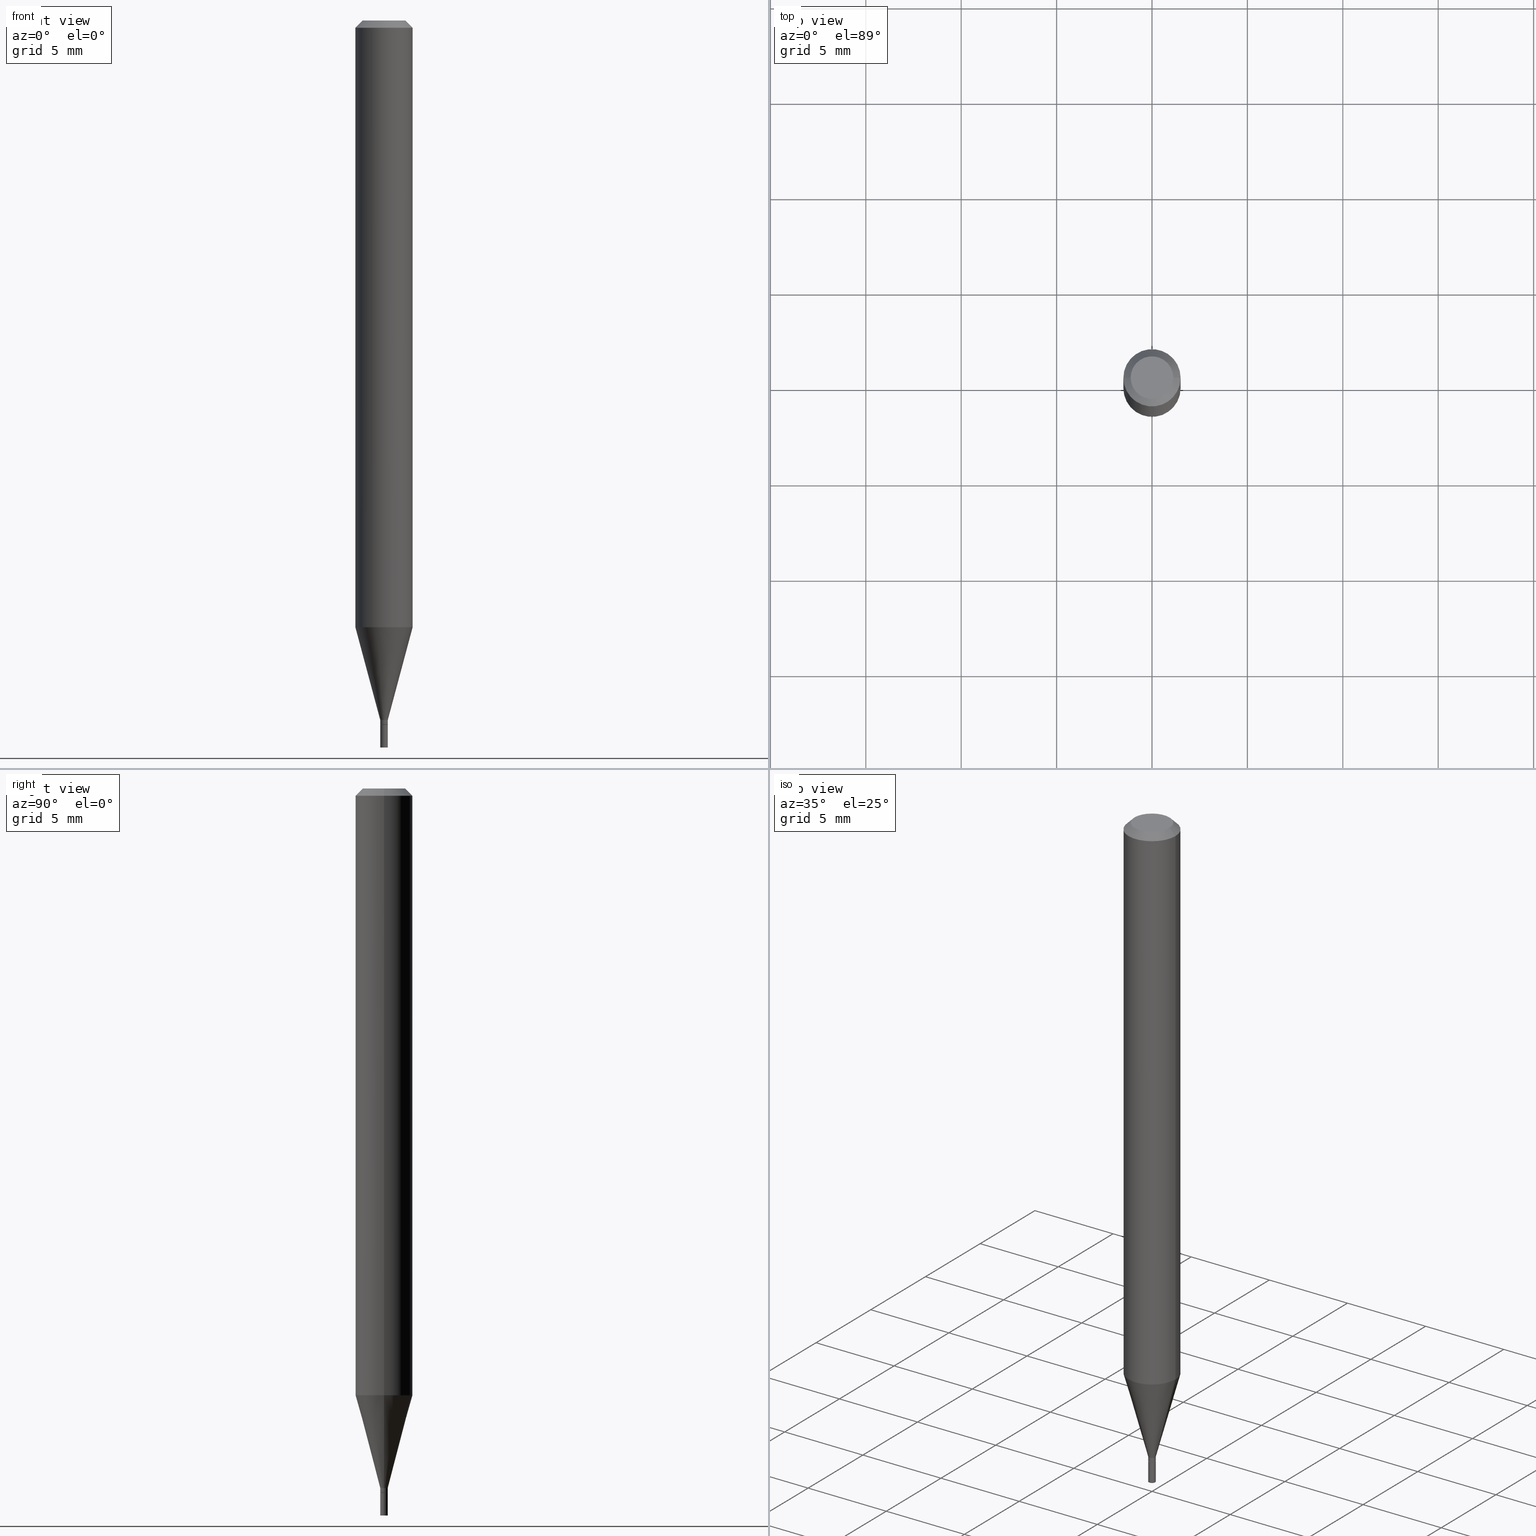
[diagram: canonical four-view strip — front | top / right | iso, engineering-drawing reading convention]
A machine part, canonical four-view strip (front | top / right | iso — engineering-drawing reading convention). The complete STEP part file that produces these views, byte-faithful:
ISO-10303-21;
HEADER;
FILE_DESCRIPTION (( 'STEP AP203' ),
    '1' );
FILE_NAME ('02351.STEP',
    '2024-03-18T20:12:28',
    ( '' ),
    ( '' ),
    'SwSTEP 2.0',
    'SolidWorks 2023',
    '' );
FILE_SCHEMA (( 'CONFIG_CONTROL_DESIGN' ));
ENDSEC;

DATA;
#1 = DESIGN_CONTEXT ( 'detailed design', #453, 'design' ) ;
#2 = DIRECTION ( 'NONE',  ( 1.000000000000000000, -6.982962677686274599E-15, 0.000000000000000000 ) ) ;
#3 = AXIS2_PLACEMENT_3D ( 'NONE', #11, #356, #148 ) ;
#4 = DIRECTION ( 'NONE',  ( 1.000000000000000000, -6.982962677686274599E-15, 0.000000000000000000 ) ) ;
#5 = ORIENTED_EDGE ( 'NONE', *, *, #256, .T. ) ;
#6 = CARTESIAN_POINT ( 'NONE',  ( -0.05904999999999999832, 4.195754854663391478E-16, -2.904631170795521892E-30 ) ) ;
#7 = DIRECTION ( 'NONE',  ( -1.000000000000000000, 6.982962677686265922E-15, -4.876176775795935793E-29 ) ) ;
#8 = VERTEX_POINT ( 'NONE', #439 ) ;
#9 = CONICAL_SURFACE ( 'NONE', #323, 0.05904999999999999832, 0.7853981633974522758 ) ;
#10 = EDGE_CURVE ( 'NONE', #412, #437, #116, .T. ) ;
#11 = CARTESIAN_POINT ( 'NONE',  ( 0.000000000000000000, 0.000000000000000000, 0.000000000000000000 ) ) ;
#12 = CARTESIAN_POINT ( 'NONE',  ( 0.007849999999999919542, -5.093023828970496460E-15, -1.443000000000000060 ) ) ;
#13 = ORIENTED_EDGE ( 'NONE', *, *, #416, .T. ) ;
#14 = ORIENTED_EDGE ( 'NONE', *, *, #222, .F. ) ;
#15 = EDGE_CURVE ( 'NONE', #47, #8, #283, .T. ) ;
#16 = AXIS2_PLACEMENT_3D ( 'NONE', #34, #25, #377 ) ;
#17 = AXIS2_PLACEMENT_3D ( 'NONE', #459, #68, #211 ) ;
#18 = CARTESIAN_POINT ( 'NONE',  ( 3.061528859075156697E-29, -4.371051821538309893E-15, -1.251918998652473913 ) ) ;
#19 = AXIS2_PLACEMENT_3D ( 'NONE', #441, #197, #446 ) ;
#20 = ORIENTED_EDGE ( 'NONE', *, *, #104, .F. ) ;
#21 = ORIENTED_EDGE ( 'NONE', *, *, #344, .F. ) ;
#22 = DIRECTION ( 'NONE',  ( 1.000000000000000000, -6.982962677686265922E-15, 4.888540261209747396E-29 ) ) ;
#23 = ORIENTED_EDGE ( 'NONE', *, *, #296, .T. ) ;
#24 = VECTOR ( 'NONE', #263, 39.37007874015747433 ) ;
#25 = DIRECTION ( 'NONE',  ( -2.445468806185136597E-29, 3.491481338843145583E-15, 1.000000000000000000 ) ) ;
#26 = AXIS2_PLACEMENT_3D ( 'NONE', #18, #400, #225 ) ;
#27 = PERSON_AND_ORGANIZATION_ROLE ( 'design_owner' ) ;
#28 = PLANE ( 'NONE',  #420 ) ;
#29 = ADVANCED_FACE ( 'NONE', ( #99 ), #65, .T. ) ;
#30 = CALENDAR_DATE ( 2024, 18, 3 ) ;
#31 = DIRECTION ( 'NONE',  ( 2.445468806185136597E-29, -3.491481338843145583E-15, -1.000000000000000000 ) ) ;
#32 = EDGE_CURVE ( 'NONE', #294, #192, #362, .T. ) ;
#33 = PERSON_AND_ORGANIZATION ( #357, #194 ) ;
#34 = CARTESIAN_POINT ( 'NONE',  ( 2.842653332627866660E-45, -4.058555577796679728E-31, -1.162416517208545723E-16 ) ) ;
#35 = FACE_OUTER_BOUND ( 'NONE', #57, .T. ) ;
#36 = DIRECTION ( 'NONE',  ( -1.000000000000000000, 6.982962677686266711E-15, 0.000000000000000000 ) ) ;
#37 = FACE_OUTER_BOUND ( 'NONE', #415, .T. ) ;
#38 = AXIS2_PLACEMENT_3D ( 'NONE', #172, #321, #130 ) ;
#39 = VECTOR ( 'NONE', #292, 39.37007874015748143 ) ;
#40 = CYLINDRICAL_SURFACE ( 'NONE', #319, 0.05904999999999999832 ) ;
#41 = ORIENTED_EDGE ( 'NONE', *, *, #287, .T. ) ;
#42 = DIRECTION ( 'NONE',  ( -2.445468806185136597E-29, 3.491481338843145583E-15, 1.000000000000000000 ) ) ;
#43 = ORIENTED_EDGE ( 'NONE', *, *, #309, .T. ) ;
#44 = APPROVAL ( #414, 'UNSPECIFIED' ) ;
#45 = CARTESIAN_POINT ( 'NONE',  ( 3.668203209277704895E-29, -5.237222008264718177E-15, -1.500000000000000222 ) ) ;
#46 = ORIENTED_EDGE ( 'NONE', *, *, #66, .T. ) ;
#47 = VERTEX_POINT ( 'NONE', #341 ) ;
#48 = EDGE_CURVE ( 'NONE', #55, #91, #274, .T. ) ;
#49 = VERTEX_POINT ( 'NONE', #346 ) ;
#50 = DIRECTION ( 'NONE',  ( -1.000000000000000000, 6.982962677686265922E-15, -4.876176775795935793E-29 ) ) ;
#51 = ORIENTED_EDGE ( 'NONE', *, *, #165, .F. ) ;
#52 = AXIS2_PLACEMENT_3D ( 'NONE', #279, #271, #347 ) ;
#53 = AXIS2_PLACEMENT_3D ( 'NONE', #45, #353, #176 ) ;
#54 = DIRECTION ( 'NONE',  ( -0.2588190451025214611, 5.211531920934551042E-15, 0.9659258262890682012 ) ) ;
#55 = VERTEX_POINT ( 'NONE', #207 ) ;
#56 = DIRECTION ( 'NONE',  ( -2.445468806185136597E-29, 3.491481338843145583E-15, 1.000000000000000000 ) ) ;
#57 = EDGE_LOOP ( 'NONE', ( #85, #445 ) ) ;
#58 = EDGE_CURVE ( 'NONE', #300, #192, #201, .T. ) ;
#59 = PERSON_AND_ORGANIZATION ( #357, #194 ) ;
#60 = CARTESIAN_POINT ( 'NONE',  ( 3.552777081625766969E-29, -5.072424089071322718E-15, -1.452800000000000091 ) ) ;
#61 = PERSON_AND_ORGANIZATION ( #357, #194 ) ;
#62 = DIRECTION ( 'NONE',  ( -2.438088387897960049E-29, 3.491481338843145188E-15, 1.000000000000000000 ) ) ;
#63 = AXIS2_PLACEMENT_3D ( 'NONE', #328, #79, #7 ) ;
#64 = MECHANICAL_CONTEXT ( 'NONE', #366, 'mechanical' ) ;
#65 = CYLINDRICAL_SURFACE ( 'NONE', #209, 0.05904999999999999832 ) ;
#66 = EDGE_CURVE ( 'NONE', #340, #392, #81, .T. ) ;
#67 = DATE_AND_TIME ( #378, #71 ) ;
#68 = DIRECTION ( 'NONE',  ( -2.445468806185136597E-29, 3.491481338843145583E-15, 1.000000000000000000 ) ) ;
#69 = LINE ( 'NONE', #164, #460 ) ;
#70 = CIRCLE ( 'NONE', #293, 0.007849999999999919542 ) ;
#71 = LOCAL_TIME ( 16, 12, 28.00000000000000000, #243 ) ;
#72 = FACE_OUTER_BOUND ( 'NONE', #433, .T. ) ;
#73 = FACE_OUTER_BOUND ( 'NONE', #189, .T. ) ;
#74 = LINE ( 'NONE', #6, #185 ) ;
#75 = AXIS2_PLACEMENT_3D ( 'NONE', #160, #56, #158 ) ;
#76 = CARTESIAN_POINT ( 'NONE',  ( 0.007849999999999919542, -5.481625701983663571E-17, 3.827798768999770704E-31 ) ) ;
#77 = ORIENTED_EDGE ( 'NONE', *, *, #58, .F. ) ;
#78 = ADVANCED_FACE ( 'NONE', ( #205 ), #9, .T. ) ;
#79 = DIRECTION ( 'NONE',  ( 2.438088387897960049E-29, -3.491481338843145188E-15, -1.000000000000000000 ) ) ;
#80 = ORIENTED_EDGE ( 'NONE', *, *, #309, .F. ) ;
#81 = CIRCLE ( 'NONE', #17, 0.05904999999999999832 ) ;
#82 = AXIS2_PLACEMENT_3D ( 'NONE', #304, #120, #22 ) ;
#83 = CC_DESIGN_PERSON_AND_ORGANIZATION_ASSIGNMENT ( #270, #129, ( #324 ) ) ;
#84 = CARTESIAN_POINT ( 'NONE',  ( -0.007349999999999998895, -5.020199197992955584E-15, -1.452800000000000091 ) ) ;
#85 = ORIENTED_EDGE ( 'NONE', *, *, #193, .F. ) ;
#86 = ORIENTED_EDGE ( 'NONE', *, *, #361, .F. ) ;
#87 = CARTESIAN_POINT ( 'NONE',  ( 0.05904999999999999832, -4.647161662000212105E-16, -0.01499999999999999944 ) ) ;
#88 = VERTEX_POINT ( 'NONE', #169 ) ;
#89 = CONICAL_SURFACE ( 'NONE', #413, 0.007349999999999998895, 0.7853981633974718157 ) ;
#90 =( LENGTH_UNIT ( ) NAMED_UNIT ( * ) SI_UNIT ( $, .METRE. ) );
#91 = VERTEX_POINT ( 'NONE', #386 ) ;
#92 = EDGE_CURVE ( 'NONE', #437, #392, #69, .T. ) ;
#93 = ORIENTED_EDGE ( 'NONE', *, *, #32, .F. ) ;
#94 = DATE_TIME_ROLE ( 'creation_date' ) ;
#95 = DIRECTION ( 'NONE',  ( -2.445468806185136597E-29, 3.491481338843145583E-15, 1.000000000000000000 ) ) ;
#96 = VECTOR ( 'NONE', #295, 39.37007874015748143 ) ;
#97 = DIRECTION ( 'NONE',  ( 1.000000000000000000, -6.982962677686267499E-15, 4.876176775795936353E-29 ) ) ;
#98 = CONICAL_SURFACE ( 'NONE', #373, 0.007849999999999919542, 0.2617993877991501295 ) ;
#99 = FACE_OUTER_BOUND ( 'NONE', #397, .T. ) ;
#100 = SECURITY_CLASSIFICATION_LEVEL ( 'unclassified' ) ;
#101 = CARTESIAN_POINT ( 'NONE',  ( -0.007849999999999999339, 5.577760475716785990E-17, -3.861364045850100522E-31 ) ) ;
#102 = CARTESIAN_POINT ( 'NONE',  ( 3.528811487325152432E-29, -5.038207571950659670E-15, -1.443000000000000060 ) ) ;
#103 = AXIS2_PLACEMENT_3D ( 'NONE', #187, #409, #260 ) ;
#104 = EDGE_CURVE ( 'NONE', #55, #340, #136, .T. ) ;
#105 = ADVANCED_FACE ( 'NONE', ( #312 ), #455, .F. ) ;
#106 = LINE ( 'NONE', #325, #39 ) ;
#107 = ORIENTED_EDGE ( 'NONE', *, *, #199, .T. ) ;
#108 = DIRECTION ( 'NONE',  ( -2.445468806185136597E-29, 3.491481338843145583E-15, 1.000000000000000000 ) ) ;
#109 = PLANE ( 'NONE',  #63 ) ;
#110 = CIRCLE ( 'NONE', #355, 0.007849999999999921277 ) ;
#111 = CARTESIAN_POINT ( 'NONE',  ( -0.007849999999999919542, 5.577760475716729290E-17, -3.861364045850061986E-31 ) ) ;
#112 = DIMENSIONAL_EXPONENTS ( 1.000000000000000000, 0.000000000000000000, 0.000000000000000000, 0.000000000000000000, 0.000000000000000000, 0.000000000000000000, 0.000000000000000000 ) ;
#113 =( NAMED_UNIT ( * ) PLANE_ANGLE_UNIT ( ) SI_UNIT ( $, .RADIAN. ) );
#114 = ORIENTED_EDGE ( 'NONE', *, *, #15, .T. ) ;
#115 = ADVANCED_FACE ( 'NONE', ( #35 ), #28, .F. ) ;
#116 = LINE ( 'NONE', #442, #24 ) ;
#117 = DIRECTION ( 'NONE',  ( 2.438088387897960049E-29, -3.491481338843145188E-15, -1.000000000000000000 ) ) ;
#118 = PRODUCT ( '02351', '02351', '', ( #64 ) ) ;
#119 = CARTESIAN_POINT ( 'NONE',  ( 3.552777081625766969E-29, -5.072424089071322718E-15, -1.452800000000000091 ) ) ;
#120 = DIRECTION ( 'NONE',  ( -2.445468806185136597E-29, 3.491481338843145583E-15, 1.000000000000000000 ) ) ;
#121 = ORIENTED_EDGE ( 'NONE', *, *, #361, .T. ) ;
#122 = CARTESIAN_POINT ( 'NONE',  ( 3.552777081625766969E-29, -5.072424089071322718E-15, -1.452800000000000091 ) ) ;
#123 = CC_DESIGN_PERSON_AND_ORGANIZATION_ASSIGNMENT ( #59, #27, ( #118 ) ) ;
#124 = ORIENTED_EDGE ( 'NONE', *, *, #48, .F. ) ;
#125 = AXIS2_PLACEMENT_3D ( 'NONE', #343, #62, #351 ) ;
#126 = CC_DESIGN_APPROVAL ( #145, ( #461 ) ) ;
#127 = APPROVAL_DATE_TIME ( #67, #145 ) ;
#128 = ORIENTED_EDGE ( 'NONE', *, *, #199, .F. ) ;
#129 = PERSON_AND_ORGANIZATION_ROLE ( 'creator' ) ;
#130 = DIRECTION ( 'NONE',  ( 1.000000000000000000, -6.982962677686261189E-15, 0.000000000000000000 ) ) ;
#131 = CC_DESIGN_DATE_AND_TIME_ASSIGNMENT ( #308, #94, ( #259 ) ) ;
#132 = PERSON_AND_ORGANIZATION ( #357, #194 ) ;
#133 = CARTESIAN_POINT ( 'NONE',  ( -0.05904999999999999832, 3.599717260347268549E-16, -0.01499999999999999944 ) ) ;
#134 = APPROVAL_STATUS ( 'not_yet_approved' ) ;
#135 = LOCAL_TIME ( 16, 12, 28.00000000000000000, #168 ) ;
#136 = LINE ( 'NONE', #133, #171 ) ;
#137 = MANIFOLD_SOLID_BREP ( 'Body-Move/Copy2[2]', #223 ) ;
#138 = APPROVAL_DATE_TIME ( #345, #339 ) ;
#139 = DIRECTION ( 'NONE',  ( 1.000000000000000000, -6.982962677686261189E-15, 0.000000000000000000 ) ) ;
#140 = LINE ( 'NONE', #111, #96 ) ;
#141 = ADVANCED_FACE ( 'NONE', ( #280 ), #173, .T. ) ;
#142 = DIRECTION ( 'NONE',  ( 1.000000000000000000, -6.982962677686265922E-15, 4.876176775795935793E-29 ) ) ;
#143 = CIRCLE ( 'NONE', #434, 0.007849999999999919542 ) ;
#144 = DIRECTION ( 'NONE',  ( 1.000000000000000000, -6.982962677686274599E-15, 0.000000000000000000 ) ) ;
#145 = APPROVAL ( #134, 'UNSPECIFIED' ) ;
#146 = FACE_OUTER_BOUND ( 'NONE', #365, .T. ) ;
#147 = EDGE_LOOP ( 'NONE', ( #331, #226, #162, #80 ) ) ;
#148 = DIRECTION ( 'NONE',  ( 1.000000000000000000, -6.982962677686267499E-15, 4.876176775795936353E-29 ) ) ;
#149 = APPROVAL_PERSON_ORGANIZATION ( #33, #44, #448 ) ;
#150 = DIRECTION ( 'NONE',  ( -2.445468806185136597E-29, 3.491481338843145583E-15, 1.000000000000000000 ) ) ;
#151 = ORIENTED_EDGE ( 'NONE', *, *, #165, .T. ) ;
#152 = LINE ( 'NONE', #333, #233 ) ;
#153 = ORIENTED_EDGE ( 'NONE', *, *, #212, .T. ) ;
#154 = CARTESIAN_POINT ( 'NONE',  ( 0.000000000000000000, 0.000000000000000000, 0.000000000000000000 ) ) ;
#155 = ORIENTED_EDGE ( 'NONE', *, *, #222, .T. ) ;
#156 = CIRCLE ( 'NONE', #251, 0.007849999999999921277 ) ;
#157 = AXIS2_PLACEMENT_3D ( 'NONE', #297, #117, #50 ) ;
#158 = DIRECTION ( 'NONE',  ( 1.000000000000000000, -6.982962677686265922E-15, 4.876176775795935793E-29 ) ) ;
#159 = EDGE_LOOP ( 'NONE', ( #235, #447 ) ) ;
#160 = CARTESIAN_POINT ( 'NONE',  ( 0.000000000000000000, 0.000000000000000000, 0.000000000000000000 ) ) ;
#161 = ORIENTED_EDGE ( 'NONE', *, *, #374, .T. ) ;
#162 = ORIENTED_EDGE ( 'NONE', *, *, #416, .F. ) ;
#163 = APPROVAL_PERSON_ORGANIZATION ( #276, #145, #422 ) ;
#164 = CARTESIAN_POINT ( 'NONE',  ( 0.05904999999999999832, -4.123439461173740327E-16, 2.879382386107500220E-30 ) ) ;
#165 = EDGE_CURVE ( 'NONE', #376, #437, #403, .T. ) ;
#166 = APPLICATION_PROTOCOL_DEFINITION ( 'international standard', 'config_control_design', 1994, #453 ) ;
#167 = LINE ( 'NONE', #465, #273 ) ;
#168 = COORDINATED_UNIVERSAL_TIME_OFFSET ( 5, 0, .BEHIND. ) ;
#169 = CARTESIAN_POINT ( 'NONE',  ( 0.007849999999999921277, -5.125494605421738004E-15, -1.452300000000000146 ) ) ;
#170 = PERSON_AND_ORGANIZATION ( #357, #194 ) ;
#171 = VECTOR ( 'NONE', #457, 39.37007874015748143 ) ;
#172 = CARTESIAN_POINT ( 'NONE',  ( 3.552777081625766969E-29, -5.072424089071322718E-15, -1.452800000000000091 ) ) ;
#173 = CYLINDRICAL_SURFACE ( 'NONE', #177, 0.007849999999999919542 ) ;
#174 = UNCERTAINTY_MEASURE_WITH_UNIT (LENGTH_MEASURE( 1.000000000000000082E-05 ), #375, 'distance_accuracy_value', 'NONE');
#175 = FACE_OUTER_BOUND ( 'NONE', #408, .T. ) ;
#176 = DIRECTION ( 'NONE',  ( 1.000000000000000000, -6.982962677686327453E-15, 0.000000000000000000 ) ) ;
#177 = AXIS2_PLACEMENT_3D ( 'NONE', #241, #208, #97 ) ;
#178 = CC_DESIGN_PERSON_AND_ORGANIZATION_ASSIGNMENT ( #385, #454, ( #259 ) ) ;
#179 = DIRECTION ( 'NONE',  ( 1.000000000000000000, -6.982962677686273021E-15, 0.000000000000000000 ) ) ;
#180 = ORIENTED_EDGE ( 'NONE', *, *, #104, .T. ) ;
#181 = DIRECTION ( 'NONE',  ( -2.445468806185136597E-29, 3.491481338843145583E-15, 1.000000000000000000 ) ) ;
#182 = CARTESIAN_POINT ( 'NONE',  ( -0.007849999999999999339, -5.099045443910852809E-15, -1.500000000000000222 ) ) ;
#183 = ORIENTED_EDGE ( 'NONE', *, *, #32, .T. ) ;
#184 = AXIS2_PLACEMENT_3D ( 'NONE', #102, #396, #360 ) ;
#185 = VECTOR ( 'NONE', #234, 39.37007874015748143 ) ;
#186 = EDGE_CURVE ( 'NONE', #8, #47, #449, .T. ) ;
#187 = CARTESIAN_POINT ( 'NONE',  ( 3.668203209277705088E-31, -5.237222008264718399E-17, -0.01499999999999999944 ) ) ;
#188 = EDGE_LOOP ( 'NONE', ( #268, #229, #93, #261 ) ) ;
#189 = EDGE_LOOP ( 'NONE', ( #286, #310, #394, #51 ) ) ;
#190 = ADVANCED_BREP_SHAPE_REPRESENTATION ( '02351', ( #444, #137, #405 ), #275 ) ;
#191 = CARTESIAN_POINT ( 'NONE',  ( 0.05904999999999998445, -4.783395767655684024E-15, -1.251918998652473913 ) ) ;
#192 = VERTEX_POINT ( 'NONE', #464 ) ;
#193 = EDGE_CURVE ( 'NONE', #49, #300, #301, .T. ) ;
#194 = ORGANIZATION ( 'UNSPECIFIED', 'UNSPECIFIED', '' ) ;
#195 = FACE_OUTER_BOUND ( 'NONE', #147, .T. ) ;
#196 = EDGE_LOOP ( 'NONE', ( #298, #155, #41, #369 ) ) ;
#197 = DIRECTION ( 'NONE',  ( -2.445468806185136597E-29, 3.491481338843145583E-15, 1.000000000000000000 ) ) ;
#198 = VERTEX_POINT ( 'NONE', #380 ) ;
#199 = EDGE_CURVE ( 'NONE', #91, #392, #167, .T. ) ;
#200 = CC_DESIGN_DATE_AND_TIME_ASSIGNMENT ( #342, #456, ( #461 ) ) ;
#201 = LINE ( 'NONE', #101, #381 ) ;
#202 = AXIS2_PLACEMENT_3D ( 'NONE', #119, #244, #139 ) ;
#203 = LOCAL_TIME ( 16, 12, 28.00000000000000000, #462 ) ;
#204 = APPROVAL_STATUS ( 'not_yet_approved' ) ;
#205 = FACE_OUTER_BOUND ( 'NONE', #399, .T. ) ;
#206 = CALENDAR_DATE ( 2024, 18, 3 ) ;
#207 = CARTESIAN_POINT ( 'NONE',  ( -0.04404999999999999888, 3.337856159934032167E-16, -1.162416517208568157E-16 ) ) ;
#208 = DIRECTION ( 'NONE',  ( -2.445468806185136597E-29, 3.491481338843145583E-15, 1.000000000000000000 ) ) ;
#209 = AXIS2_PLACEMENT_3D ( 'NONE', #320, #314, #387 ) ;
#210 = APPROVAL_PERSON_ORGANIZATION ( #132, #339, #311 ) ;
#211 = DIRECTION ( 'NONE',  ( 1.000000000000000000, -6.982962677686266711E-15, 0.000000000000000000 ) ) ;
#212 = EDGE_CURVE ( 'NONE', #401, #198, #140, .T. ) ;
#213 = FACE_OUTER_BOUND ( 'NONE', #410, .T. ) ;
#214 = ADVANCED_FACE ( 'NONE', ( #254 ), #232, .T. ) ;
#215 = DIRECTION ( 'NONE',  ( -2.445468806185136597E-29, 3.491481338843145583E-15, 1.000000000000000000 ) ) ;
#216 = ORIENTED_EDGE ( 'NONE', *, *, #92, .F. ) ;
#217 = CYLINDRICAL_SURFACE ( 'NONE', #421, 0.007849999999999999339 ) ;
#218 = VECTOR ( 'NONE', #370, 39.37007874015748143 ) ;
#219 = DIRECTION ( 'NONE',  ( -2.445468806185136877E-29, 3.491481338843145188E-15, 1.000000000000000000 ) ) ;
#220 = EDGE_LOOP ( 'NONE', ( #13, #153, #335, #428 ) ) ;
#221 = CYLINDRICAL_SURFACE ( 'NONE', #3, 0.007849999999999919542 ) ;
#222 = EDGE_CURVE ( 'NONE', #401, #88, #156, .T. ) ;
#223 = CLOSED_SHELL ( 'NONE', ( #290, #466, #228, #277, #242, #327, #29, #78, #388, #105, #214, #141 ) ) ;
#224 = VECTOR ( 'NONE', #219, 39.37007874015748143 ) ;
#225 = DIRECTION ( 'NONE',  ( 1.000000000000000000, -6.982962677686273021E-15, 0.000000000000000000 ) ) ;
#226 = ORIENTED_EDGE ( 'NONE', *, *, #402, .T. ) ;
#227 = CARTESIAN_POINT ( 'NONE',  ( -0.007849999999999921277, -5.014900743644734759E-15, -1.452300000000000146 ) ) ;
#228 = ADVANCED_FACE ( 'NONE', ( #213 ), #291, .T. ) ;
#229 = ORIENTED_EDGE ( 'NONE', *, *, #58, .T. ) ;
#230 = CARTESIAN_POINT ( 'NONE',  ( 3.551554347222674728E-29, -5.070678348401901214E-15, -1.452300000000000146 ) ) ;
#231 = ORIENTED_EDGE ( 'NONE', *, *, #48, .T. ) ;
#232 = CONICAL_SURFACE ( 'NONE', #334, 0.007349999999999998895, 0.7853981633974718157 ) ;
#233 = VECTOR ( 'NONE', #54, 39.37007874015747433 ) ;
#234 = DIRECTION ( 'NONE',  ( -2.445468806185136877E-29, 3.491481338843145188E-15, 1.000000000000000000 ) ) ;
#235 = ORIENTED_EDGE ( 'NONE', *, *, #186, .F. ) ;
#236 = SHAPE_DEFINITION_REPRESENTATION ( #303, #190 ) ;
#237 = DIRECTION ( 'NONE',  ( -2.445468806185136597E-29, 3.491481338843145583E-15, 1.000000000000000000 ) ) ;
#238 = CARTESIAN_POINT ( 'NONE',  ( 3.668203209277705088E-31, -5.237222008264718399E-17, -0.01499999999999999944 ) ) ;
#239 = COORDINATED_UNIVERSAL_TIME_OFFSET ( 5, 0, .BEHIND. ) ;
#240 = CARTESIAN_POINT ( 'NONE',  ( 3.061528859075156697E-29, -4.371051821538309893E-15, -1.251918998652473913 ) ) ;
#241 = CARTESIAN_POINT ( 'NONE',  ( 0.000000000000000000, 0.000000000000000000, 0.000000000000000000 ) ) ;
#242 = ADVANCED_FACE ( 'NONE', ( #175 ), #389, .T. ) ;
#243 = COORDINATED_UNIVERSAL_TIME_OFFSET ( 5, 0, .BEHIND. ) ;
#244 = DIRECTION ( 'NONE',  ( -2.445468806185136597E-29, 3.491481338843145583E-15, 1.000000000000000000 ) ) ;
#245 = CC_DESIGN_SECURITY_CLASSIFICATION ( #461, ( #324 ) ) ;
#246 = CARTESIAN_POINT ( 'NONE',  ( 0.000000000000000000, 0.000000000000000000, 0.000000000000000000 ) ) ;
#247 = EDGE_CURVE ( 'NONE', #198, #412, #70, .T. ) ;
#248 = CARTESIAN_POINT ( 'NONE',  ( 3.551554347222674728E-29, -5.070678348401901214E-15, -1.452300000000000146 ) ) ;
#249 = ORIENTED_EDGE ( 'NONE', *, *, #438, .T. ) ;
#250 = DIRECTION ( 'NONE',  ( 0.7071067811865642261, -2.468850131082431399E-15, 0.7071067811865309194 ) ) ;
#251 = AXIS2_PLACEMENT_3D ( 'NONE', #248, #108, #179 ) ;
#252 = LINE ( 'NONE', #76, #224 ) ;
#253 = VECTOR ( 'NONE', #250, 39.37007874015748143 ) ;
#254 = FACE_OUTER_BOUND ( 'NONE', #305, .T. ) ;
#255 = PLANE ( 'NONE',  #157 ) ;
#256 = EDGE_CURVE ( 'NONE', #300, #49, #258, .T. ) ;
#257 = ORIENTED_EDGE ( 'NONE', *, *, #429, .F. ) ;
#258 = CIRCLE ( 'NONE', #53, 0.007849999999999999339 ) ;
#259 = PRODUCT_DEFINITION ( 'UNKNOWN', '', #324, #1 ) ;
#260 = DIRECTION ( 'NONE',  ( 1.000000000000000000, -6.982962677686266711E-15, 0.000000000000000000 ) ) ;
#261 = ORIENTED_EDGE ( 'NONE', *, *, #296, .F. ) ;
#262 = DIRECTION ( 'NONE',  ( 1.000000000000000000, -6.982962677686273021E-15, 0.000000000000000000 ) ) ;
#263 = DIRECTION ( 'NONE',  ( 0.2588190451025214611, 1.565188264969621573E-15, 0.9659258262890682012 ) ) ;
#264 = CARTESIAN_POINT ( 'NONE',  ( -0.05904999999999998445, -3.951476336071971189E-15, -1.251918998652473913 ) ) ;
#265 = ORIENTED_EDGE ( 'NONE', *, *, #438, .F. ) ;
#266 = LOCAL_TIME ( 16, 12, 28.00000000000000000, #239 ) ;
#267 = CALENDAR_DATE ( 2024, 18, 3 ) ;
#268 = ORIENTED_EDGE ( 'NONE', *, *, #193, .T. ) ;
#269 = CC_DESIGN_PERSON_AND_ORGANIZATION_ASSIGNMENT ( #170, #383, ( #461 ) ) ;
#270 = PERSON_AND_ORGANIZATION ( #357, #194 ) ;
#271 = DIRECTION ( 'NONE',  ( -2.445468806185136597E-29, 3.491481338843145583E-15, 1.000000000000000000 ) ) ;
#272 = DIRECTION ( 'NONE',  ( -2.445468806185136877E-29, 3.491481338843145188E-15, 1.000000000000000000 ) ) ;
#273 = VECTOR ( 'NONE', #425, 39.37007874015748143 ) ;
#274 = CIRCLE ( 'NONE', #16, 0.04404999999999999888 ) ;
#275 =( GEOMETRIC_REPRESENTATION_CONTEXT ( 3 ) GLOBAL_UNCERTAINTY_ASSIGNED_CONTEXT ( ( #174 ) ) GLOBAL_UNIT_ASSIGNED_CONTEXT ( ( #375, #113, #330 ) ) REPRESENTATION_CONTEXT ( 'NONE', 'WORKASPACE' ) );
#276 = PERSON_AND_ORGANIZATION ( #357, #194 ) ;
#277 = ADVANCED_FACE ( 'NONE', ( #146 ), #40, .T. ) ;
#278 = DIRECTION ( 'NONE',  ( -2.438088387897960049E-29, 3.491481338843145188E-15, 1.000000000000000000 ) ) ;
#279 = CARTESIAN_POINT ( 'NONE',  ( 3.668203209277704895E-29, -5.237222008264718177E-15, -1.500000000000000222 ) ) ;
#280 = FACE_OUTER_BOUND ( 'NONE', #196, .T. ) ;
#281 = ADVANCED_FACE ( 'NONE', ( #37 ), #217, .T. ) ;
#282 = ADVANCED_FACE ( 'NONE', ( #72 ), #109, .F. ) ;
#283 = CIRCLE ( 'NONE', #202, 0.007349999999999998895 ) ;
#284 = DIRECTION ( 'NONE',  ( -2.445468806185136597E-29, 3.491481338843145583E-15, 1.000000000000000000 ) ) ;
#285 = CARTESIAN_POINT ( 'NONE',  ( 3.668203209277705088E-31, -5.237222008264718399E-17, -0.01499999999999999944 ) ) ;
#286 = ORIENTED_EDGE ( 'NONE', *, *, #463, .F. ) ;
#287 = EDGE_CURVE ( 'NONE', #88, #412, #252, .T. ) ;
#288 = CARTESIAN_POINT ( 'NONE',  ( 3.552777081625766969E-29, -5.072424089071322718E-15, -1.452800000000000091 ) ) ;
#289 = ORIENTED_EDGE ( 'NONE', *, *, #344, .T. ) ;
#290 = ADVANCED_FACE ( 'NONE', ( #358 ), #221, .T. ) ;
#291 = CONICAL_SURFACE ( 'NONE', #348, 0.05904999999999999832, 0.7853981633974522758 ) ;
#292 = DIRECTION ( 'NONE',  ( -2.445468806185136877E-29, 3.491481338843145188E-15, 1.000000000000000000 ) ) ;
#293 = AXIS2_PLACEMENT_3D ( 'NONE', #322, #284, #2 ) ;
#294 = VERTEX_POINT ( 'NONE', #431 ) ;
#295 = DIRECTION ( 'NONE',  ( -2.445468806185136877E-29, 3.491481338843145188E-15, 1.000000000000000000 ) ) ;
#296 = EDGE_CURVE ( 'NONE', #49, #294, #106, .T. ) ;
#297 = CARTESIAN_POINT ( 'NONE',  ( 3.075995059520799729E-16, 0.04404999999999999888, -2.119205788364678519E-16 ) ) ;
#298 = ORIENTED_EDGE ( 'NONE', *, *, #212, .F. ) ;
#299 = DIRECTION ( 'NONE',  ( 0.000000000000000000, 0.000000000000000000, 1.000000000000000000 ) ) ;
#300 = VERTEX_POINT ( 'NONE', #182 ) ;
#301 = CIRCLE ( 'NONE', #52, 0.007849999999999999339 ) ;
#302 = CIRCLE ( 'NONE', #26, 0.05904999999999999832 ) ;
#303 = PRODUCT_DEFINITION_SHAPE ( 'NONE', 'NONE',  #259 ) ;
#304 = CARTESIAN_POINT ( 'NONE',  ( 2.842653332627866660E-45, -4.058555577796679728E-31, -1.162416517208545723E-16 ) ) ;
#305 = EDGE_LOOP ( 'NONE', ( #406, #114, #43, #14 ) ) ;
#306 = CYLINDRICAL_SURFACE ( 'NONE', #75, 0.007849999999999999339 ) ;
#307 = ORIENTED_EDGE ( 'NONE', *, *, #92, .T. ) ;
#308 = DATE_AND_TIME ( #267, #135 ) ;
#309 = EDGE_CURVE ( 'NONE', #8, #88, #329, .T. ) ;
#310 = ORIENTED_EDGE ( 'NONE', *, *, #247, .T. ) ;
#311 = APPROVAL_ROLE ( '' ) ;
#312 = FACE_OUTER_BOUND ( 'NONE', #159, .T. ) ;
#313 = DIRECTION ( 'NONE',  ( 1.000000000000000000, 0.000000000000000000, 0.000000000000000000 ) ) ;
#314 = DIRECTION ( 'NONE',  ( -2.445468806185136597E-29, 3.491481338843145583E-15, 1.000000000000000000 ) ) ;
#315 = EDGE_CURVE ( 'NONE', #412, #198, #143, .T. ) ;
#316 = CALENDAR_DATE ( 2024, 18, 3 ) ;
#317 = DIRECTION ( 'NONE',  ( -2.445468806185136877E-29, 3.491481338843145188E-15, 1.000000000000000000 ) ) ;
#318 = AXIS2_PLACEMENT_3D ( 'NONE', #60, #95, #384 ) ;
#319 = AXIS2_PLACEMENT_3D ( 'NONE', #432, #150, #398 ) ;
#320 = CARTESIAN_POINT ( 'NONE',  ( 0.000000000000000000, 0.000000000000000000, 0.000000000000000000 ) ) ;
#321 = DIRECTION ( 'NONE',  ( -2.445468806185136597E-29, 3.491481338843145583E-15, 1.000000000000000000 ) ) ;
#322 = CARTESIAN_POINT ( 'NONE',  ( 3.528811487325152432E-29, -5.038207571950659670E-15, -1.443000000000000060 ) ) ;
#323 = AXIS2_PLACEMENT_3D ( 'NONE', #238, #31, #423 ) ;
#324 = PRODUCT_DEFINITION_FORMATION_WITH_SPECIFIED_SOURCE ( 'ANY', '', #118, .NOT_KNOWN. ) ;
#325 = CARTESIAN_POINT ( 'NONE',  ( 0.007849999999999999339, -5.481625701983718421E-17, 3.827798768999809240E-31 ) ) ;
#326 = CARTESIAN_POINT ( 'NONE',  ( 3.528811487325152432E-29, -5.038207571950659670E-15, -1.443000000000000060 ) ) ;
#327 = ADVANCED_FACE ( 'NONE', ( #73 ), #98, .T. ) ;
#328 = CARTESIAN_POINT ( 'NONE',  ( 5.481625701987270760E-17, 0.007849999999994927008, -1.452800000000000091 ) ) ;
#329 = LINE ( 'NONE', #427, #253 ) ;
#330 =( NAMED_UNIT ( * ) SI_UNIT ( $, .STERADIAN. ) SOLID_ANGLE_UNIT ( ) );
#331 = ORIENTED_EDGE ( 'NONE', *, *, #186, .T. ) ;
#332 = ORIENTED_EDGE ( 'NONE', *, *, #66, .F. ) ;
#333 = CARTESIAN_POINT ( 'NONE',  ( -0.007849999999999919542, -4.982429967193492427E-15, -1.443000000000000060 ) ) ;
#334 = AXIS2_PLACEMENT_3D ( 'NONE', #288, #42, #435 ) ;
#335 = ORIENTED_EDGE ( 'NONE', *, *, #315, .F. ) ;
#336 = LOCAL_TIME ( 16, 12, 28.00000000000000000, #418 ) ;
#337 = DIRECTION ( 'NONE',  ( -2.445468806185136597E-29, 3.491481338843145583E-15, 1.000000000000000000 ) ) ;
#338 = ORIENTED_EDGE ( 'NONE', *, *, #429, .T. ) ;
#339 = APPROVAL ( #204, 'UNSPECIFIED' ) ;
#340 = VERTEX_POINT ( 'NONE', #393 ) ;
#341 = CARTESIAN_POINT ( 'NONE',  ( -0.007349999999999998895, -5.017549970818845172E-15, -1.452800000000000091 ) ) ;
#342 = DATE_AND_TIME ( #206, #203 ) ;
#343 = CARTESIAN_POINT ( 'NONE',  ( 3.552777081625766969E-29, -5.072424089071322718E-15, -1.452800000000000091 ) ) ;
#344 = EDGE_CURVE ( 'NONE', #376, #340, #74, .T. ) ;
#345 = DATE_AND_TIME ( #30, #336 ) ;
#346 = CARTESIAN_POINT ( 'NONE',  ( 0.007849999999999999339, -5.292038265284556544E-15, -1.500000000000000222 ) ) ;
#347 = DIRECTION ( 'NONE',  ( 1.000000000000000000, -6.982962677686327453E-15, 0.000000000000000000 ) ) ;
#348 = AXIS2_PLACEMENT_3D ( 'NONE', #285, #352, #36 ) ;
#349 = CIRCLE ( 'NONE', #103, 0.05904999999999999832 ) ;
#350 = APPROVAL_DATE_TIME ( #458, #44 ) ;
#351 = DIRECTION ( 'NONE',  ( 1.000000000000000000, -6.982962677686265922E-15, 4.876176775795935793E-29 ) ) ;
#352 = DIRECTION ( 'NONE',  ( 2.445468806185136597E-29, -3.491481338843145583E-15, -1.000000000000000000 ) ) ;
#353 = DIRECTION ( 'NONE',  ( -2.445468806185136597E-29, 3.491481338843145583E-15, 1.000000000000000000 ) ) ;
#354 = ORIENTED_EDGE ( 'NONE', *, *, #374, .F. ) ;
#355 = AXIS2_PLACEMENT_3D ( 'NONE', #230, #443, #262 ) ;
#356 = DIRECTION ( 'NONE',  ( -2.445468806185136597E-29, 3.491481338843145583E-15, 1.000000000000000000 ) ) ;
#357 = PERSON ( 'UNSPECIFIED', 'UNSPECIFIED', 'UNSPECIFIED', ('UNSPECIFIED'), ('UNSPECIFIED'), ('UNSPECIFIED') ) ;
#358 = FACE_OUTER_BOUND ( 'NONE', #220, .T. ) ;
#359 = EDGE_LOOP ( 'NONE', ( #231, #121 ) ) ;
#360 = DIRECTION ( 'NONE',  ( 1.000000000000000000, -6.982962677686274599E-15, 0.000000000000000000 ) ) ;
#361 = EDGE_CURVE ( 'NONE', #91, #55, #382, .T. ) ;
#362 = CIRCLE ( 'NONE', #318, 0.007849999999999999339 ) ;
#363 = LENGTH_MEASURE_WITH_UNIT ( LENGTH_MEASURE( 0.02539999999999999897 ), #90 );
#364 = CIRCLE ( 'NONE', #19, 0.007849999999999999339 ) ;
#365 = EDGE_LOOP ( 'NONE', ( #161, #289, #257, #216 ) ) ;
#366 = APPLICATION_CONTEXT ( 'configuration controlled 3d designs of mechanical parts and assemblies' ) ;
#367 = ORIENTED_EDGE ( 'NONE', *, *, #463, .T. ) ;
#368 = FACE_OUTER_BOUND ( 'NONE', #188, .T. ) ;
#369 = ORIENTED_EDGE ( 'NONE', *, *, #247, .F. ) ;
#370 = DIRECTION ( 'NONE',  ( -0.7071067811865642261, 7.493145998870414114E-15, 0.7071067811865309194 ) ) ;
#371 = CLOSED_SHELL ( 'NONE', ( #379, #115, #281, #282 ) ) ;
#372 = ORIENTED_EDGE ( 'NONE', *, *, #10, .F. ) ;
#373 = AXIS2_PLACEMENT_3D ( 'NONE', #326, #215, #144 ) ;
#374 = EDGE_CURVE ( 'NONE', #437, #376, #302, .T. ) ;
#375 =( CONVERSION_BASED_UNIT ( 'INCH', #363 ) LENGTH_UNIT ( ) NAMED_UNIT ( #112 ) );
#376 = VERTEX_POINT ( 'NONE', #264 ) ;
#377 = DIRECTION ( 'NONE',  ( 1.000000000000000000, -6.982962677686265922E-15, 4.888540261209747396E-29 ) ) ;
#378 = CALENDAR_DATE ( 2024, 18, 3 ) ;
#379 = ADVANCED_FACE ( 'NONE', ( #368 ), #306, .T. ) ;
#380 = CARTESIAN_POINT ( 'NONE',  ( -0.007849999999999919542, -4.466953151632730624E-15, -1.443000000000000060 ) ) ;
#381 = VECTOR ( 'NONE', #272, 39.37007874015748143 ) ;
#382 = CIRCLE ( 'NONE', #82, 0.04404999999999999888 ) ;
#383 = PERSON_AND_ORGANIZATION_ROLE ( 'classification_officer' ) ;
#384 = DIRECTION ( 'NONE',  ( 1.000000000000000000, -6.982962677686327453E-15, 0.000000000000000000 ) ) ;
#385 = PERSON_AND_ORGANIZATION ( #357, #194 ) ;
#386 = CARTESIAN_POINT ( 'NONE',  ( 0.04404999999999999888, -3.798447818264462051E-16, -1.162416517208521811E-16 ) ) ;
#387 = DIRECTION ( 'NONE',  ( 1.000000000000000000, -6.982962677686266711E-15, 4.876176775795936353E-29 ) ) ;
#388 = ADVANCED_FACE ( 'NONE', ( #411 ), #255, .F. ) ;
#389 = CONICAL_SURFACE ( 'NONE', #184, 0.007849999999999919542, 0.2617993877991501295 ) ;
#390 = DIRECTION ( 'NONE',  ( -2.445468806185136597E-29, 3.491481338843145583E-15, 1.000000000000000000 ) ) ;
#391 = CARTESIAN_POINT ( 'NONE',  ( 3.528811487325152432E-29, -5.038207571950659670E-15, -1.443000000000000060 ) ) ;
#392 = VERTEX_POINT ( 'NONE', #87 ) ;
#393 = CARTESIAN_POINT ( 'NONE',  ( -0.05904999999999999832, -1.792136535344139190E-15, -0.01499999999999999944 ) ) ;
#394 = ORIENTED_EDGE ( 'NONE', *, *, #10, .T. ) ;
#395 = CC_DESIGN_APPROVAL ( #339, ( #259 ) ) ;
#396 = DIRECTION ( 'NONE',  ( -2.445468806185136597E-29, 3.491481338843145583E-15, 1.000000000000000000 ) ) ;
#397 = EDGE_LOOP ( 'NONE', ( #21, #151, #307, #332 ) ) ;
#398 = DIRECTION ( 'NONE',  ( 1.000000000000000000, -6.982962677686266711E-15, 4.876176775795936353E-29 ) ) ;
#399 = EDGE_LOOP ( 'NONE', ( #128, #124, #180, #46 ) ) ;
#400 = DIRECTION ( 'NONE',  ( -2.445468806185136597E-29, 3.491481338843145583E-15, 1.000000000000000000 ) ) ;
#401 = VERTEX_POINT ( 'NONE', #227 ) ;
#402 = EDGE_CURVE ( 'NONE', #47, #401, #404, .T. ) ;
#403 = CIRCLE ( 'NONE', #440, 0.05904999999999999832 ) ;
#404 = LINE ( 'NONE', #84, #218 ) ;
#405 = AXIS2_PLACEMENT_3D ( 'NONE', #154, #299, #313 ) ;
#406 = ORIENTED_EDGE ( 'NONE', *, *, #402, .F. ) ;
#407 = APPLICATION_PROTOCOL_DEFINITION ( 'international standard', 'config_control_design', 1994, #366 ) ;
#408 = EDGE_LOOP ( 'NONE', ( #450, #367, #354, #372 ) ) ;
#409 = DIRECTION ( 'NONE',  ( -2.445468806185136597E-29, 3.491481338843145583E-15, 1.000000000000000000 ) ) ;
#410 = EDGE_LOOP ( 'NONE', ( #86, #107, #338, #20 ) ) ;
#411 = FACE_OUTER_BOUND ( 'NONE', #359, .T. ) ;
#412 = VERTEX_POINT ( 'NONE', #12 ) ;
#413 = AXIS2_PLACEMENT_3D ( 'NONE', #122, #337, #436 ) ;
#414 = APPROVAL_STATUS ( 'not_yet_approved' ) ;
#415 = EDGE_LOOP ( 'NONE', ( #77, #5, #23, #265 ) ) ;
#416 = EDGE_CURVE ( 'NONE', #88, #401, #110, .T. ) ;
#417 = DIRECTION ( 'NONE',  ( 1.000000000000000000, -6.982962677686273021E-15, 0.000000000000000000 ) ) ;
#418 = COORDINATED_UNIVERSAL_TIME_OFFSET ( 5, 0, .BEHIND. ) ;
#419 = CARTESIAN_POINT ( 'NONE',  ( 3.576687321579069994E-29, -5.368277968210015545E-15, -1.500000000000000222 ) ) ;
#420 = AXIS2_PLACEMENT_3D ( 'NONE', #419, #278, #426 ) ;
#421 = AXIS2_PLACEMENT_3D ( 'NONE', #246, #181, #142 ) ;
#422 = APPROVAL_ROLE ( '' ) ;
#423 = DIRECTION ( 'NONE',  ( -1.000000000000000000, 6.982962677686266711E-15, 0.000000000000000000 ) ) ;
#424 = PERSON_AND_ORGANIZATION_ROLE ( 'design_supplier' ) ;
#425 = DIRECTION ( 'NONE',  ( 0.7071067811865503483, -7.319954787623265512E-15, -0.7071067811865446862 ) ) ;
#426 = DIRECTION ( 'NONE',  ( 1.000000000000000000, -6.982962677686265922E-15, 4.876176775795935793E-29 ) ) ;
#427 = CARTESIAN_POINT ( 'NONE',  ( 0.007349999999999998895, -5.123748864752316500E-15, -1.452800000000000091 ) ) ;
#428 = ORIENTED_EDGE ( 'NONE', *, *, #287, .F. ) ;
#429 = EDGE_CURVE ( 'NONE', #392, #340, #349, .T. ) ;
#430 = PRODUCT_RELATED_PRODUCT_CATEGORY ( 'detail', '', ( #118 ) ) ;
#431 = CARTESIAN_POINT ( 'NONE',  ( 0.007849999999999999339, -5.127240346091160296E-15, -1.452800000000000091 ) ) ;
#432 = CARTESIAN_POINT ( 'NONE',  ( 0.000000000000000000, 0.000000000000000000, 0.000000000000000000 ) ) ;
#433 = EDGE_LOOP ( 'NONE', ( #183, #249 ) ) ;
#434 = AXIS2_PLACEMENT_3D ( 'NONE', #391, #390, #4 ) ;
#435 = DIRECTION ( 'NONE',  ( 1.000000000000000000, -6.982962677686261189E-15, 0.000000000000000000 ) ) ;
#436 = DIRECTION ( 'NONE',  ( 1.000000000000000000, -6.982962677686261189E-15, 0.000000000000000000 ) ) ;
#437 = VERTEX_POINT ( 'NONE', #191 ) ;
#438 = EDGE_CURVE ( 'NONE', #192, #294, #364, .T. ) ;
#439 = CARTESIAN_POINT ( 'NONE',  ( 0.007349999999999998895, -5.123748864752316500E-15, -1.452800000000000091 ) ) ;
#440 = AXIS2_PLACEMENT_3D ( 'NONE', #240, #237, #417 ) ;
#441 = CARTESIAN_POINT ( 'NONE',  ( 3.552777081625766969E-29, -5.072424089071322718E-15, -1.452800000000000091 ) ) ;
#442 = CARTESIAN_POINT ( 'NONE',  ( 0.007849999999999919542, -5.093023828970496460E-15, -1.443000000000000060 ) ) ;
#443 = DIRECTION ( 'NONE',  ( -2.445468806185136597E-29, 3.491481338843145583E-15, 1.000000000000000000 ) ) ;
#444 = MANIFOLD_SOLID_BREP ( 'Body-Move/Copy2[1]', #371 ) ;
#445 = ORIENTED_EDGE ( 'NONE', *, *, #256, .F. ) ;
#446 = DIRECTION ( 'NONE',  ( 1.000000000000000000, -6.982962677686327453E-15, 0.000000000000000000 ) ) ;
#447 = ORIENTED_EDGE ( 'NONE', *, *, #15, .F. ) ;
#448 = APPROVAL_ROLE ( '' ) ;
#449 = CIRCLE ( 'NONE', #38, 0.007349999999999998895 ) ;
#450 = ORIENTED_EDGE ( 'NONE', *, *, #315, .T. ) ;
#451 = CC_DESIGN_APPROVAL ( #44, ( #324 ) ) ;
#452 = CC_DESIGN_PERSON_AND_ORGANIZATION_ASSIGNMENT ( #61, #424, ( #324 ) ) ;
#453 = APPLICATION_CONTEXT ( 'configuration controlled 3d designs of mechanical parts and assemblies' ) ;
#454 = PERSON_AND_ORGANIZATION_ROLE ( 'creator' ) ;
#455 = PLANE ( 'NONE',  #125 ) ;
#456 = DATE_TIME_ROLE ( 'classification_date' ) ;
#457 = DIRECTION ( 'NONE',  ( -0.7071067811865503483, 2.468850131082286248E-15, -0.7071067811865446862 ) ) ;
#458 = DATE_AND_TIME ( #316, #266 ) ;
#459 = CARTESIAN_POINT ( 'NONE',  ( 3.668203209277705088E-31, -5.237222008264718399E-17, -0.01499999999999999944 ) ) ;
#460 = VECTOR ( 'NONE', #317, 39.37007874015748143 ) ;
#461 = SECURITY_CLASSIFICATION ( '', '', #100 ) ;
#462 = COORDINATED_UNIVERSAL_TIME_OFFSET ( 5, 0, .BEHIND. ) ;
#463 = EDGE_CURVE ( 'NONE', #198, #376, #152, .T. ) ;
#464 = CARTESIAN_POINT ( 'NONE',  ( -0.007849999999999999339, -5.099045443910852809E-15, -1.452800000000000091 ) ) ;
#465 = CARTESIAN_POINT ( 'NONE',  ( 0.05904999999999999832, -4.574846268510561447E-16, -0.01499999999999999944 ) ) ;
#466 = ADVANCED_FACE ( 'NONE', ( #195 ), #89, .T. ) ;
ENDSEC;
END-ISO-10303-21;
